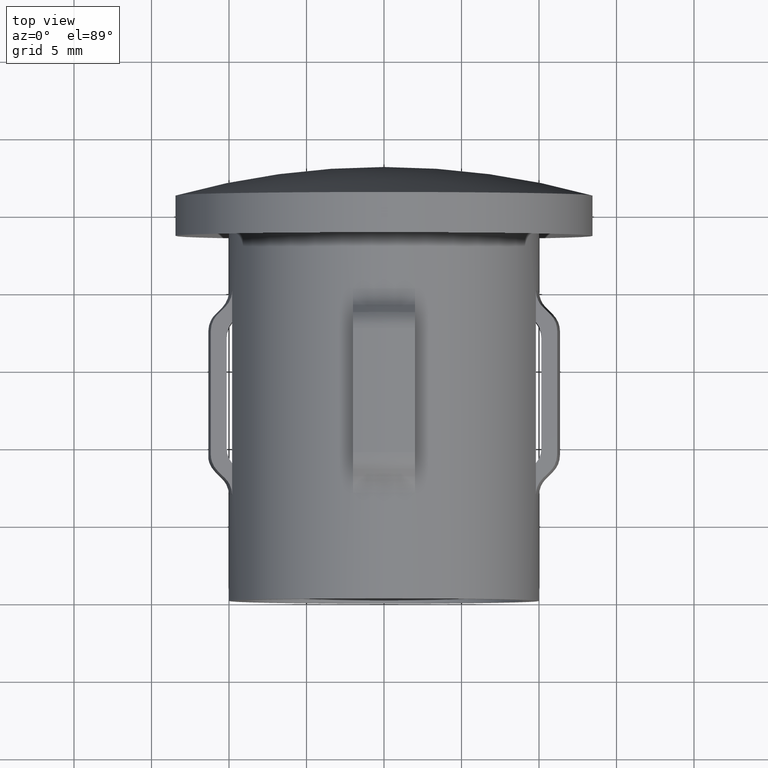
[diagram: clean part render]
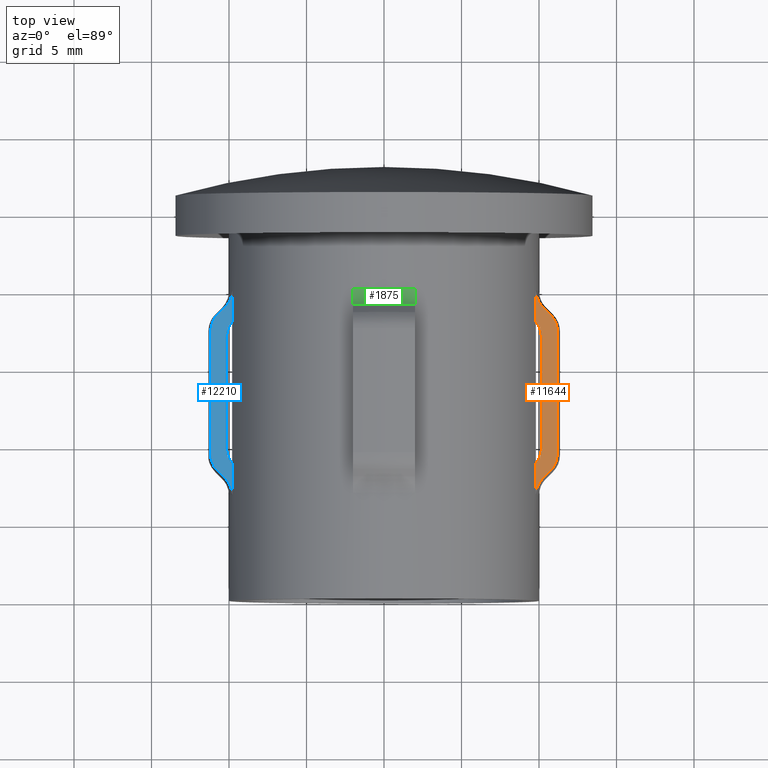
[diagram: same view with three faces highlighted in distinct colors, each labeled with its STEP entity id]
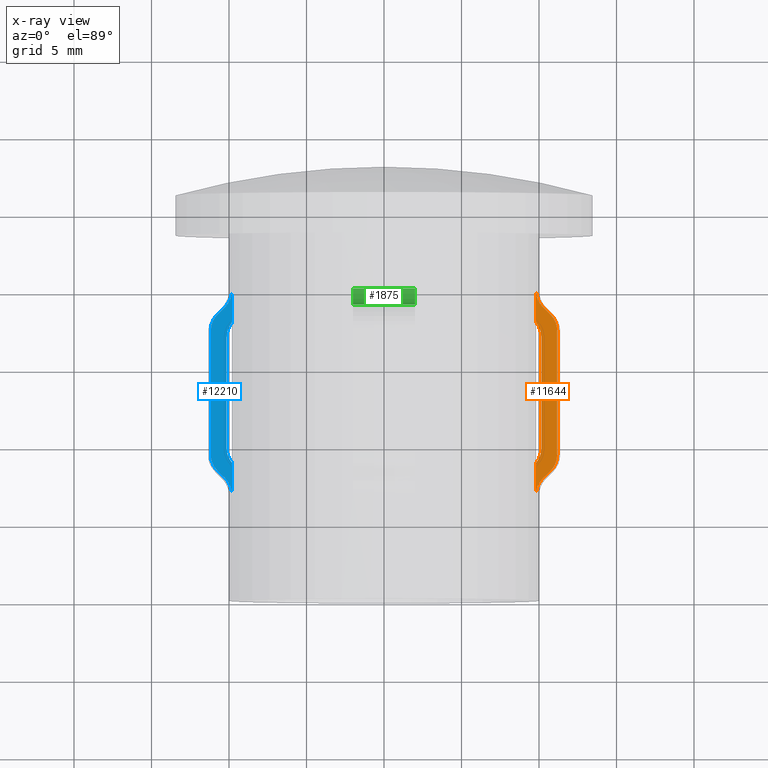
[diagram: x-ray of the same camera — body ghosted, the three highlighted faces saturated]
A machine part, top view with three faces highlighted in distinct colors.
The next image is the same camera in x-ray (body ghosted, the three faces saturated) — at least one of them is partly hidden behind the body in this view.
Their STEP definitions:

[orange] entity #11644 — the highlighted planar face has unit normal (0, -0, 1).
#70 = DIRECTION ( 'NONE',  ( -2.449293598294745364E-17, -1.000000000000000000, -0.000000000000000000 ) ) ;
#178 = B_SPLINE_CURVE_WITH_KNOTS ( 'NONE', 3,
 ( #3140, #12870, #9683, #4201, #8541, #7650, #4294, #4395 ),
 .UNSPECIFIED., .F., .F.,
 ( 4, 2, 2, 4 ),
 ( 0.008426157723448658710, 0.008719793217878499952, 0.009013428712308341195, 0.009600699701168023681 ),
 .UNSPECIFIED. ) ;
#321 = CARTESIAN_POINT ( 'NONE',  ( 11.13256222387941996, 9.014350420652675666, 1.999999999999997113 ) ) ;
#407 = PLANE ( 'NONE',  #3112 ) ;
#541 = VERTEX_POINT ( 'NONE', #11013 ) ;
#682 = ORIENTED_EDGE ( 'NONE', *, *, #5465, .F. ) ;
#790 = VERTEX_POINT ( 'NONE', #4691 ) ;
#822 = CARTESIAN_POINT ( 'NONE',  ( 9.991970481237842705, 19.24281738224883043, 1.999999999999997780 ) ) ;
#912 = ORIENTED_EDGE ( 'NONE', *, *, #6501, .T. ) ;
#1106 = ORIENTED_EDGE ( 'NONE', *, *, #12026, .F. ) ;
#1241 = VERTEX_POINT ( 'NONE', #12310 ) ;
#1580 = CARTESIAN_POINT ( 'NONE',  ( 9.797958971132718631, 17.95621376472045938, 1.999999999999997335 ) ) ;
#1727 = ORIENTED_EDGE ( 'NONE', *, *, #3211, .F. ) ;
#2171 = CARTESIAN_POINT ( 'NONE',  ( 10.72578693542168793, 18.46801948466053744, 1.999999999999997113 ) ) ;
#2434 = ORIENTED_EDGE ( 'NONE', *, *, #12840, .F. ) ;
#2582 = DIRECTION ( 'NONE',  ( 2.904862207577519418E-15, 1.000000000000000000, 0.000000000000000000 ) ) ;
#2615 = ORIENTED_EDGE ( 'NONE', *, *, #4288, .F. ) ;
#2643 = CARTESIAN_POINT ( 'NONE',  ( 10.15492491356471483, 16.99314575050868115, 1.999999999999997335 ) ) ;
#2874 = CARTESIAN_POINT ( 'NONE',  ( 10.72578693542168793, 18.46801948466053744, 1.999999999999997113 ) ) ;
#3112 = AXIS2_PLACEMENT_3D ( 'NONE', #10223, #11320, #12412 ) ;
#3140 = CARTESIAN_POINT ( 'NONE',  ( 10.24596584266530463, 7.875378797541252140, 1.999999999999997335 ) ) ;
#3211 = EDGE_CURVE ( 'NONE', #12797, #3498, #8047, .T. ) ;
#3498 = VERTEX_POINT ( 'NONE', #7045 ) ;
#3569 = B_SPLINE_CURVE_WITH_KNOTS ( 'NONE', 3,
 ( #2171, #10992, #9798, #6675, #11997, #14073 ),
 .UNSPECIFIED., .F., .F.,
 ( 4, 2, 4 ),
 ( 0.008602516756375072973, 0.009189670194162419259, 0.009776823631949767279 ),
 .UNSPECIFIED. ) ;
#3712 = CARTESIAN_POINT ( 'NONE',  ( 10.12308712454889736, 17.34407841311888276, 1.999999999999997780 ) ) ;
#3811 = VERTEX_POINT ( 'NONE', #1580 ) ;
#3872 = DIRECTION ( 'NONE',  ( -2.449293598294745364E-17, -1.000000000000000000, -0.000000000000000000 ) ) ;
#3999 = CARTESIAN_POINT ( 'NONE',  ( 10.24596584266530286, 18.93933982822018791, 1.999999999999997335 ) ) ;
#4201 = CARTESIAN_POINT ( 'NONE',  ( 10.00101974118111237, 7.567751309589711539, 1.999999999999997335 ) ) ;
#4218 = ORIENTED_EDGE ( 'NONE', *, *, #5275, .F. ) ;
#4223 = CARTESIAN_POINT ( 'NONE',  ( 10.27479279310302651, 7.903672865215649601, 1.999999999999997335 ) ) ;
#4275 = VERTEX_POINT ( 'NONE', #11503 ) ;
#4288 = EDGE_CURVE ( 'NONE', #13740, #10254, #9863, .T. ) ;
#4294 = CARTESIAN_POINT ( 'NONE',  ( 9.797958971132720407, 7.010933610141438344, 1.999999999999997780 ) ) ;
#4369 = VECTOR ( 'NONE', #3872, 1000.000000000000000 ) ;
#4395 = CARTESIAN_POINT ( 'NONE',  ( 9.797958971132718631, 6.814718625761425841, 1.999999999999997335 ) ) ;
#4431 = B_SPLINE_CURVE_WITH_KNOTS ( 'NONE', 3,
 ( #2643, #7925, #3712, #12520, #11331, #11427 ),
 .UNSPECIFIED., .F., .F.,
 ( 4, 2, 4 ),
 ( 0.009059009424964729884, 0.009579528376234613257, 0.01010004732750449663 ),
 .UNSPECIFIED. ) ;
#4563 = CARTESIAN_POINT ( 'NONE',  ( 10.86550616014695159, 8.484050924731874943, 1.999999999999997335 ) ) ;
#4691 = CARTESIAN_POINT ( 'NONE',  ( 11.17239902617175140, 9.407359312880741342, 1.999999999999997113 ) ) ;
#4694 = B_SPLINE_CURVE_WITH_KNOTS ( 'NONE', 3,
 ( #10203, #11306, #5146, #11648, #6335, #822, #8485, #7309 ),
 .UNSPECIFIED., .F., .F.,
 ( 4, 2, 2, 4 ),
 ( 0.008551085924792176801, 0.008844617867056085714, 0.009138149809319992892, 0.009725213693847812452 ),
 .UNSPECIFIED. ) ;
#4778 = CARTESIAN_POINT ( 'NONE',  ( 10.24596584266530286, 18.93933982822018791, 1.999999999999997335 ) ) ;
#4854 = EDGE_LOOP ( 'NONE', ( #912, #6021, #1106, #2615, #12685, #4218, #10321, #13792, #2434, #10735, #1727, #682 ) ) ;
#5052 = CARTESIAN_POINT ( 'NONE',  ( 10.12352724954889105, 9.472328512659123234, 1.999999999999997335 ) ) ;
#5127 = CARTESIAN_POINT ( 'NONE',  ( 10.58031067694316185, 8.203687872485012633, 1.999999999999997113 ) ) ;
#5146 = CARTESIAN_POINT ( 'NONE',  ( 9.808040498164391607, 19.80220780296832217, 1.999999999999997335 ) ) ;
#5275 = EDGE_CURVE ( 'NONE', #1241, #4275, #178, .T. ) ;
#5465 = EDGE_CURVE ( 'NONE', #541, #12797, #4694, .T. ) ;
#5643 = EDGE_CURVE ( 'NONE', #11636, #3811, #4431, .T. ) ;
#5993 = EDGE_CURVE ( 'NONE', #3498, #11063, #3569, .T. ) ;
#6021 = ORIENTED_EDGE ( 'NONE', *, *, #5643, .F. ) ;
#6054 = CARTESIAN_POINT ( 'NONE',  ( 9.797958971132718631, 8.858504861040989553, 1.999999999999997335 ) ) ;
#6300 = CARTESIAN_POINT ( 'NONE',  ( 11.17239902617175140, 9.407359312880741342, 1.999999999999997113 ) ) ;
#6335 = CARTESIAN_POINT ( 'NONE',  ( 9.876154369981225756, 19.51651431633856859, 1.999999999999997113 ) ) ;
#6395 = CARTESIAN_POINT ( 'NONE',  ( 11.17239902617160219, 9.211719316799229063, 1.999999999999997113 ) ) ;
#6501 = EDGE_CURVE ( 'NONE', #541, #3811, #7247, .T. ) ;
#6609 = B_SPLINE_CURVE_WITH_KNOTS ( 'NONE', 3,
 ( #10720, #5127, #9607, #12744, #4223, #11818, #11764 ),
 .UNSPECIFIED., .F., .F.,
 ( 4, 3, 4 ),
 ( 0.001809827753613239918, 0.002421824281905946875, 0.002482412859159547139 ),
 .UNSPECIFIED. ) ;
#6675 = CARTESIAN_POINT ( 'NONE',  ( 11.13281070435609443, 17.80045533684128856, 1.999999999999997113 ) ) ;
#6819 = CARTESIAN_POINT ( 'NONE',  ( 10.98030597944945974, 8.652554232323222294, 1.999999999999997113 ) ) ;
#6942 = EDGE_CURVE ( 'NONE', #13740, #4275, #14041, .T. ) ;
#7045 = CARTESIAN_POINT ( 'NONE',  ( 10.72578693542168793, 18.46801948466053744, 1.999999999999997113 ) ) ;
#7247 = LINE ( 'NONE', #12107, #8750 ) ;
#7309 = CARTESIAN_POINT ( 'NONE',  ( 10.24596584266530286, 18.93933982822018791, 1.999999999999997335 ) ) ;
#7447 = CARTESIAN_POINT ( 'NONE',  ( 11.17239902617175140, 20.00000000000000000, 1.999999999999997113 ) ) ;
#7650 = CARTESIAN_POINT ( 'NONE',  ( 9.838866221195736728, 7.210867761781918794, 1.999999999999997780 ) ) ;
#7797 = CARTESIAN_POINT ( 'NONE',  ( 9.797958971132718631, 8.858504861040989553, 1.999999999999997335 ) ) ;
#7829 = CARTESIAN_POINT ( 'NONE',  ( 10.15492491355798421, 25.49999999999996803, 1.999999999999997335 ) ) ;
#7925 = CARTESIAN_POINT ( 'NONE',  ( 10.15492491355777638, 17.16705208759415413, 1.999999999999997335 ) ) ;
#8022 = CARTESIAN_POINT ( 'NONE',  ( 10.26037959174783154, 18.92519307342587354, 1.999999999999997335 ) ) ;
#8047 = B_SPLINE_CURVE_WITH_KNOTS ( 'NONE', 3,
 ( #4778, #8022, #11327, #9207, #11861, #13927, #2874 ),
 .UNSPECIFIED., .F., .F.,
 ( 4, 3, 4 ),
 ( 0.002361237725428175834, 0.002421826253360476883, 0.003033822283465788857 ),
 .UNSPECIFIED. ) ;
#8190 = CARTESIAN_POINT ( 'NONE',  ( 9.911961912947607090, 8.991885427055683166, 1.999999999999997335 ) ) ;
#8485 = CARTESIAN_POINT ( 'NONE',  ( 10.10629499283182042, 19.07642347336998867, 1.999999999999998224 ) ) ;
#8541 = CARTESIAN_POINT ( 'NONE',  ( 9.954065724113762670, 7.481926190087629713, 1.999999999999997780 ) ) ;
#8750 = VECTOR ( 'NONE', #13602, 1000.000000000000000 ) ;
#9207 = CARTESIAN_POINT ( 'NONE',  ( 10.28920545341646964, 18.89689789651923491, 1.999999999999997335 ) ) ;
#9607 = CARTESIAN_POINT ( 'NONE',  ( 10.43478561724956144, 8.060726224694143127, 1.999999999999997335 ) ) ;
#9683 = CARTESIAN_POINT ( 'NONE',  ( 10.11199452816315869, 7.730368194126904235, 1.999999999999997780 ) ) ;
#9798 = CARTESIAN_POINT ( 'NONE',  ( 10.97851938403975502, 18.16572538053133101, 1.999999999999997113 ) ) ;
#9834 = CARTESIAN_POINT ( 'NONE',  ( 11.17239902617175140, 17.40735931288071114, 1.999999999999997113 ) ) ;
#9863 = B_SPLINE_CURVE_WITH_KNOTS ( 'NONE', 3,
 ( #6054, #8190, #10451, #5052, #11451, #11548 ),
 .UNSPECIFIED., .F., .F.,
 ( 4, 2, 4 ),
 ( 0.009399530972505489024, 0.009921360146849611192, 0.01044318932119373336 ),
 .UNSPECIFIED. ) ;
#9927 = VECTOR ( 'NONE', #2582, 1000.000000000000000 ) ;
#10203 = CARTESIAN_POINT ( 'NONE',  ( 9.797958971132718631, 20.00000000000000000, 1.999999999999997335 ) ) ;
#10223 = CARTESIAN_POINT ( 'NONE',  ( 1.340918035724672342E-15, 20.00000000000000000, 2.000000000000001776 ) ) ;
#10254 = VERTEX_POINT ( 'NONE', #12194 ) ;
#10278 = LINE ( 'NONE', #7829, #9927 ) ;
#10321 = ORIENTED_EDGE ( 'NONE', *, *, #13201, .F. ) ;
#10451 = CARTESIAN_POINT ( 'NONE',  ( 10.00168509603316203, 9.144195651052474005, 1.999999999999997780 ) ) ;
#10720 = CARTESIAN_POINT ( 'NONE',  ( 10.72578693542168615, 8.346699141100891950, 1.999999999999997113 ) ) ;
#10735 = ORIENTED_EDGE ( 'NONE', *, *, #5993, .F. ) ;
#10782 = B_SPLINE_CURVE_WITH_KNOTS ( 'NONE', 3,
 ( #6300, #6395, #321, #6819, #4563, #11152 ),
 .UNSPECIFIED., .F., .F.,
 ( 4, 2, 4 ),
 ( 0.008467019257401954893, 0.009053662463943162181, 0.009640305670484367734 ),
 .UNSPECIFIED. ) ;
#10992 = CARTESIAN_POINT ( 'NONE',  ( 10.86655314746043111, 18.32963845415799753, 1.999999999999997113 ) ) ;
#11013 = CARTESIAN_POINT ( 'NONE',  ( 9.797958971132718631, 20.00000000000000000, 1.999999999999997335 ) ) ;
#11063 = VERTEX_POINT ( 'NONE', #9834 ) ;
#11107 = VECTOR ( 'NONE', #70, 1000.000000000000000 ) ;
#11152 = CARTESIAN_POINT ( 'NONE',  ( 10.72578693542168615, 8.346699141100891950, 1.999999999999997113 ) ) ;
#11180 = CARTESIAN_POINT ( 'NONE',  ( 10.15492491356471483, 16.99314575050868115, 1.999999999999997335 ) ) ;
#11306 = CARTESIAN_POINT ( 'NONE',  ( 9.797958971132704420, 19.90172383299794134, 1.999999999999997335 ) ) ;
#11320 = DIRECTION ( 'NONE',  ( 4.255296580328612895E-16, -1.042247067304439156E-32, 1.000000000000000000 ) ) ;
#11327 = CARTESIAN_POINT ( 'NONE',  ( 10.27479279310302296, 18.91104576054578246, 1.999999999999997335 ) ) ;
#11331 = CARTESIAN_POINT ( 'NONE',  ( 9.911361578260844851, 17.82353557514487008, 1.999999999999997780 ) ) ;
#11427 = CARTESIAN_POINT ( 'NONE',  ( 9.797958971132718631, 17.95621376472045938, 1.999999999999997335 ) ) ;
#11451 = CARTESIAN_POINT ( 'NONE',  ( 10.15492491355795757, 9.646231483412558205, 1.999999999999997780 ) ) ;
#11503 = CARTESIAN_POINT ( 'NONE',  ( 9.797958971132718631, 6.814718625761425841, 1.999999999999997335 ) ) ;
#11548 = CARTESIAN_POINT ( 'NONE',  ( 10.15492491355793803, 9.821572875253806956, 1.999999999999997335 ) ) ;
#11636 = VERTEX_POINT ( 'NONE', #11180 ) ;
#11644 = ADVANCED_FACE ( 'NONE', ( #11814 ), #407, .T. ) ;
#11648 = CARTESIAN_POINT ( 'NONE',  ( 9.847185022925405207, 19.61016997431844189, 1.999999999999997780 ) ) ;
#11764 = CARTESIAN_POINT ( 'NONE',  ( 10.24596584266530463, 7.875378797541252140, 1.999999999999997335 ) ) ;
#11814 = FACE_OUTER_BOUND ( 'NONE', #4854, .T. ) ;
#11818 = CARTESIAN_POINT ( 'NONE',  ( 10.26037959174783509, 7.889525552335562075, 1.999999999999997335 ) ) ;
#11861 = CARTESIAN_POINT ( 'NONE',  ( 10.43478561724955966, 18.75399240106728627, 1.999999999999997335 ) ) ;
#11997 = CARTESIAN_POINT ( 'NONE',  ( 11.17239902617159331, 17.60317457647188277, 1.999999999999997335 ) ) ;
#12026 = EDGE_CURVE ( 'NONE', #10254, #11636, #10278, .T. ) ;
#12107 = CARTESIAN_POINT ( 'NONE',  ( 9.797958971132718631, 20.00000000000000000, 1.999999999999997335 ) ) ;
#12180 = CARTESIAN_POINT ( 'NONE',  ( 10.72578693542168615, 8.346699141100891950, 1.999999999999997113 ) ) ;
#12194 = CARTESIAN_POINT ( 'NONE',  ( 10.15492491355793803, 9.821572875253806956, 1.999999999999997335 ) ) ;
#12310 = CARTESIAN_POINT ( 'NONE',  ( 10.24596584266530463, 7.875378797541252140, 1.999999999999997335 ) ) ;
#12412 = DIRECTION ( 'NONE',  ( 1.000000000000000000, 0.000000000000000000, -4.255296580328612895E-16 ) ) ;
#12520 = CARTESIAN_POINT ( 'NONE',  ( 10.00108673456563757, 17.67162711475185333, 1.999999999999997335 ) ) ;
#12685 = ORIENTED_EDGE ( 'NONE', *, *, #6942, .T. ) ;
#12744 = CARTESIAN_POINT ( 'NONE',  ( 10.28920545341647141, 7.917820729242200706, 1.999999999999997335 ) ) ;
#12797 = VERTEX_POINT ( 'NONE', #3999 ) ;
#12840 = EDGE_CURVE ( 'NONE', #11063, #790, #13640, .T. ) ;
#12870 = CARTESIAN_POINT ( 'NONE',  ( 10.17611170401977994, 7.806818607882886951, 1.999999999999997335 ) ) ;
#13201 = EDGE_CURVE ( 'NONE', #13395, #1241, #6609, .T. ) ;
#13395 = VERTEX_POINT ( 'NONE', #12180 ) ;
#13542 = CARTESIAN_POINT ( 'NONE',  ( 9.797958971132718631, 20.00000000000000000, 1.999999999999997335 ) ) ;
#13602 = DIRECTION ( 'NONE',  ( -2.449293598294745364E-17, -1.000000000000000000, -0.000000000000000000 ) ) ;
#13640 = LINE ( 'NONE', #7447, #11107 ) ;
#13645 = EDGE_CURVE ( 'NONE', #790, #13395, #10782, .T. ) ;
#13740 = VERTEX_POINT ( 'NONE', #7797 ) ;
#13792 = ORIENTED_EDGE ( 'NONE', *, *, #13645, .F. ) ;
#13927 = CARTESIAN_POINT ( 'NONE',  ( 10.58031067694316185, 18.61103075327641676, 1.999999999999997113 ) ) ;
#14041 = LINE ( 'NONE', #13542, #4369 ) ;
#14073 = CARTESIAN_POINT ( 'NONE',  ( 11.17239902617175140, 17.40735931288071114, 1.999999999999997113 ) ) ;

[blue] entity #12210 — the highlighted planar face has unit normal (-0, 0, 1).
#55 = EDGE_CURVE ( 'NONE', #9021, #8863, #11698, .T. ) ;
#113 = CARTESIAN_POINT ( 'NONE',  ( -10.70203436084279325, 18.49136893751933997, 1.999999999999997335 ) ) ;
#226 = CARTESIAN_POINT ( 'NONE',  ( -10.85871578851997832, 18.32401813127486179, 1.999999999999997335 ) ) ;
#549 = CARTESIAN_POINT ( 'NONE',  ( -10.39408524818022883, 8.020754500843755963, 1.999999999999997335 ) ) ;
#566 = VERTEX_POINT ( 'NONE', #13251 ) ;
#602 = CARTESIAN_POINT ( 'NONE',  ( -9.911288184425435688, 17.82362144408092419, 1.999999999999997335 ) ) ;
#697 = DIRECTION ( 'NONE',  ( -4.255296580328614374E-16, 1.042247067304439703E-32, 1.000000000000000000 ) ) ;
#708 = VERTEX_POINT ( 'NONE', #6816 ) ;
#804 = CARTESIAN_POINT ( 'NONE',  ( -10.72578693542209649, 18.46801948466110233, 1.999999999999997113 ) ) ;
#935 = VERTEX_POINT ( 'NONE', #941 ) ;
#941 = CARTESIAN_POINT ( 'NONE',  ( -11.17239902617175140, 9.407359312880741342, 1.999999999999997113 ) ) ;
#968 = CARTESIAN_POINT ( 'NONE',  ( -9.847255399679999854, 19.60990471274843472, 1.999999999999997780 ) ) ;
#1044 = EDGE_CURVE ( 'NONE', #2143, #566, #5476, .T. ) ;
#1240 = LINE ( 'NONE', #11105, #7849 ) ;
#1272 = VECTOR ( 'NONE', #12504, 1000.000000000000000 ) ;
#1493 = B_SPLINE_CURVE_WITH_KNOTS ( 'NONE', 3,
 ( #4530, #2848, #8187, #9321, #2803, #1556 ),
 .UNSPECIFIED., .F., .F.,
 ( 4, 2, 4 ),
 ( 0.008908748489845998153, 0.009429974527297893538, 0.009951200564749790659 ),
 .UNSPECIFIED. ) ;
#1556 = CARTESIAN_POINT ( 'NONE',  ( -9.797958971132866068, 8.858504861041035738, 1.999999999999997335 ) ) ;
#1621 = CARTESIAN_POINT ( 'NONE',  ( -9.797958971132816330, 6.913568839548647205, 1.999999999999997780 ) ) ;
#1723 = CARTESIAN_POINT ( 'NONE',  ( -10.71391081099659814, 8.335024249004815644, 1.999999999999997113 ) ) ;
#1776 = CARTESIAN_POINT ( 'NONE',  ( -11.17239902617175140, 17.40735931288071114, 1.999999999999997113 ) ) ;
#1824 = DIRECTION ( 'NONE',  ( 1.000000000000000000, 0.000000000000000000, 4.255296580328614374E-16 ) ) ;
#2058 = CARTESIAN_POINT ( 'NONE',  ( -9.808065996253919394, 19.80200291086222819, 1.999999999999997780 ) ) ;
#2071 = ORIENTED_EDGE ( 'NONE', *, *, #12989, .F. ) ;
#2130 = DIRECTION ( 'NONE',  ( -2.904862207577519418E-15, -1.000000000000000000, -0.000000000000000000 ) ) ;
#2143 = VERTEX_POINT ( 'NONE', #11479 ) ;
#2154 = EDGE_CURVE ( 'NONE', #14058, #6232, #9286, .T. ) ;
#2267 = CARTESIAN_POINT ( 'NONE',  ( -11.17239902617175140, 17.40735931288071114, 1.999999999999997113 ) ) ;
#2602 = ORIENTED_EDGE ( 'NONE', *, *, #55, .F. ) ;
#2605 = CARTESIAN_POINT ( 'NONE',  ( -10.24596584266534194, 18.93933982822024120, 1.999999999999997335 ) ) ;
#2726 = CARTESIAN_POINT ( 'NONE',  ( -10.69015758177718389, 8.311675462107473322, 1.999999999999997335 ) ) ;
#2803 = CARTESIAN_POINT ( 'NONE',  ( -9.911792377277338417, 8.991687074598228691, 1.999999999999997780 ) ) ;
#2848 = CARTESIAN_POINT ( 'NONE',  ( -10.15492491355803217, 9.647652851130255058, 1.999999999999997335 ) ) ;
#2998 = LINE ( 'NONE', #3421, #10305 ) ;
#3079 = CARTESIAN_POINT ( 'NONE',  ( -10.39408524818018442, 18.79396412491777824, 1.999999999999997335 ) ) ;
#3087 = CARTESIAN_POINT ( 'NONE',  ( -10.24596584266540766, 7.875378797541311648, 1.999999999999997335 ) ) ;
#3136 = CARTESIAN_POINT ( 'NONE',  ( -10.24596584266534194, 18.93933982822024120, 1.999999999999997335 ) ) ;
#3378 = DIRECTION ( 'NONE',  ( -2.449293598294745364E-17, -1.000000000000000000, -0.000000000000000000 ) ) ;
#3387 = CARTESIAN_POINT ( 'NONE',  ( -11.13178106805515633, 17.80301514726398437, 1.999999999999997113 ) ) ;
#3421 = CARTESIAN_POINT ( 'NONE',  ( -9.797958971132866068, 20.00000000000000000, 1.999999999999997335 ) ) ;
#3581 = ORIENTED_EDGE ( 'NONE', *, *, #12098, .F. ) ;
#3675 = DIRECTION ( 'NONE',  ( -2.449293598294745364E-17, -1.000000000000000000, -0.000000000000000000 ) ) ;
#3709 = CARTESIAN_POINT ( 'NONE',  ( -10.12300786799566232, 17.34431757740557600, 1.999999999999997335 ) ) ;
#3729 = VECTOR ( 'NONE', #2130, 1000.000000000000000 ) ;
#3819 = CARTESIAN_POINT ( 'NONE',  ( -9.797958971132866068, 17.95621376472045583, 1.999999999999997335 ) ) ;
#3934 = ORIENTED_EDGE ( 'NONE', *, *, #7453, .F. ) ;
#4023 = VERTEX_POINT ( 'NONE', #4575 ) ;
#4107 = CARTESIAN_POINT ( 'NONE',  ( -9.797958971132866068, 17.95621376472045583, 1.999999999999997335 ) ) ;
#4196 = CARTESIAN_POINT ( 'NONE',  ( -10.10473329235346007, 19.07795624555883762, 1.999999999999997335 ) ) ;
#4530 = CARTESIAN_POINT ( 'NONE',  ( -10.15492491355802862, 9.821572875253806956, 1.999999999999997335 ) ) ;
#4575 = CARTESIAN_POINT ( 'NONE',  ( -9.797958971132866068, 20.00000000000000000, 1.999999999999997335 ) ) ;
#4809 = CARTESIAN_POINT ( 'NONE',  ( -9.876481105209471423, 7.299089837474179276, 1.999999999999997780 ) ) ;
#4954 = CARTESIAN_POINT ( 'NONE',  ( -10.10463873481851316, 7.736669574212119649, 1.999999999999997780 ) ) ;
#5027 = CARTESIAN_POINT ( 'NONE',  ( -10.70203436084283766, 8.323349688242190680, 1.999999999999997335 ) ) ;
#5197 = CARTESIAN_POINT ( 'NONE',  ( -10.69015758177718034, 18.50304316365402002, 1.999999999999997335 ) ) ;
#5326 = CARTESIAN_POINT ( 'NONE',  ( -11.17239902617168745, 9.211511224696465661, 1.999999999999997335 ) ) ;
#5476 = LINE ( 'NONE', #13980, #3729 ) ;
#5536 = CARTESIAN_POINT ( 'NONE',  ( -10.24596584266534194, 18.93933982822024120, 1.999999999999997335 ) ) ;
#5673 = ORIENTED_EDGE ( 'NONE', *, *, #1044, .F. ) ;
#5780 = CARTESIAN_POINT ( 'NONE',  ( -11.01739615838316411, 18.07362701906371427, 1.999999999999997113 ) ) ;
#5782 = VERTEX_POINT ( 'NONE', #4107 ) ;
#5912 = CARTESIAN_POINT ( 'NONE',  ( -9.797958971132866068, 6.814718625761425841, 1.999999999999997335 ) ) ;
#5975 = B_SPLINE_CURVE_WITH_KNOTS ( 'NONE', 3,
 ( #10781, #9813, #11968, #10909, #5326, #11871 ),
 .UNSPECIFIED., .F., .F.,
 ( 4, 2, 4 ),
 ( 0.009112881277737024110, 0.009700035206934073256, 0.01028718913613112414 ),
 .UNSPECIFIED. ) ;
#5976 = EDGE_CURVE ( 'NONE', #4023, #5782, #2998, .T. ) ;
#6027 = CARTESIAN_POINT ( 'NONE',  ( -10.54214691619057653, 8.166189049431393343, 1.999999999999997335 ) ) ;
#6084 = ORIENTED_EDGE ( 'NONE', *, *, #8443, .T. ) ;
#6121 = PLANE ( 'NONE',  #6503 ) ;
#6126 = EDGE_CURVE ( 'NONE', #11359, #14058, #7060, .T. ) ;
#6177 = ORIENTED_EDGE ( 'NONE', *, *, #7910, .F. ) ;
#6232 = VERTEX_POINT ( 'NONE', #7176 ) ;
#6390 = CARTESIAN_POINT ( 'NONE',  ( -9.876267447560316270, 19.51614987797373502, 1.999999999999997335 ) ) ;
#6496 = EDGE_CURVE ( 'NONE', #566, #708, #1493, .T. ) ;
#6503 = AXIS2_PLACEMENT_3D ( 'NONE', #13678, #697, #1824 ) ;
#6548 = CARTESIAN_POINT ( 'NONE',  ( -10.72578693542209649, 18.46801948466110233, 1.999999999999997113 ) ) ;
#6686 = CARTESIAN_POINT ( 'NONE',  ( -10.79587992053213164, 18.39911417442961294, 1.999999999999997335 ) ) ;
#6816 = CARTESIAN_POINT ( 'NONE',  ( -9.797958971132866068, 8.858504861041035738, 1.999999999999997335 ) ) ;
#7060 = B_SPLINE_CURVE_WITH_KNOTS ( 'NONE', 3,
 ( #5912, #1621, #11312, #8144, #4809, #12454, #4954, #9091 ),
 .UNSPECIFIED., .F., .F.,
 ( 4, 2, 2, 4 ),
 ( 0.009306239216002366171, 0.009600094048116883730, 0.009893948880231401288, 0.01048165854446043814 ),
 .UNSPECIFIED. ) ;
#7176 = CARTESIAN_POINT ( 'NONE',  ( -10.72578693542178385, 8.346699141100950570, 1.999999999999997113 ) ) ;
#7245 = CARTESIAN_POINT ( 'NONE',  ( -10.15492491355804638, 17.16728518605075848, 1.999999999999997780 ) ) ;
#7453 = EDGE_CURVE ( 'NONE', #8863, #4023, #12521, .T. ) ;
#7849 = VECTOR ( 'NONE', #3675, 1000.000000000000000 ) ;
#7910 = EDGE_CURVE ( 'NONE', #6232, #935, #5975, .T. ) ;
#8144 = CARTESIAN_POINT ( 'NONE',  ( -9.847432176059843556, 7.205497396973618685, 1.999999999999997335 ) ) ;
#8187 = CARTESIAN_POINT ( 'NONE',  ( -10.12360117273968640, 9.472323278449099604, 1.999999999999997780 ) ) ;
#8335 = CARTESIAN_POINT ( 'NONE',  ( -9.797958971132866068, 6.814718625761425841, 1.999999999999997335 ) ) ;
#8443 = EDGE_CURVE ( 'NONE', #12125, #935, #12819, .T. ) ;
#8489 = CARTESIAN_POINT ( 'NONE',  ( -10.54214691619055344, 18.64852957633011954, 1.999999999999997335 ) ) ;
#8573 = B_SPLINE_CURVE_WITH_KNOTS ( 'NONE', 3,
 ( #3819, #602, #9105, #3709, #7245, #9492 ),
 .UNSPECIFIED., .F., .F.,
 ( 4, 2, 4 ),
 ( 0.008593185181745880211, 0.009113823359592956169, 0.009634461537440032128 ),
 .UNSPECIFIED. ) ;
#8863 = VERTEX_POINT ( 'NONE', #2605 ) ;
#8950 = CARTESIAN_POINT ( 'NONE',  ( -11.17239902617175140, 20.00000000000000000, 1.999999999999997113 ) ) ;
#9021 = VERTEX_POINT ( 'NONE', #804 ) ;
#9091 = CARTESIAN_POINT ( 'NONE',  ( -10.24596584266540766, 7.875378797541311648, 1.999999999999997335 ) ) ;
#9105 = CARTESIAN_POINT ( 'NONE',  ( -10.00111147827708713, 17.67153429566273459, 1.999999999999997780 ) ) ;
#9286 = B_SPLINE_CURVE_WITH_KNOTS ( 'NONE', 3,
 ( #9300, #549, #6027, #2726, #5027, #1723, #12602 ),
 .UNSPECIFIED., .F., .F.,
 ( 4, 3, 4 ),
 ( 0.001799201531315413813, 0.002421825388563183645, 0.002471786398512413729 ),
 .UNSPECIFIED. ) ;
#9300 = CARTESIAN_POINT ( 'NONE',  ( -10.24596584266540766, 7.875378797541311648, 1.999999999999997335 ) ) ;
#9321 = CARTESIAN_POINT ( 'NONE',  ( -10.00119284299518618, 9.143074981811878388, 1.999999999999997335 ) ) ;
#9423 = ORIENTED_EDGE ( 'NONE', *, *, #6126, .F. ) ;
#9492 = CARTESIAN_POINT ( 'NONE',  ( -10.15492491355799842, 16.99314575050768283, 1.999999999999997335 ) ) ;
#9562 = FACE_OUTER_BOUND ( 'NONE', #11951, .T. ) ;
#9632 = CARTESIAN_POINT ( 'NONE',  ( -9.797958971132741723, 19.90151168120875269, 1.999999999999997780 ) ) ;
#9813 = CARTESIAN_POINT ( 'NONE',  ( -10.86670254122462786, 8.485227033998437918, 1.999999999999997113 ) ) ;
#10075 = ORIENTED_EDGE ( 'NONE', *, *, #5976, .F. ) ;
#10123 = ORIENTED_EDGE ( 'NONE', *, *, #13279, .F. ) ;
#10305 = VECTOR ( 'NONE', #3378, 1000.000000000000000 ) ;
#10676 = B_SPLINE_CURVE_WITH_KNOTS ( 'NONE', 3,
 ( #2267, #10957, #3387, #5780, #12088, #226, #6686, #12263 ),
 .UNSPECIFIED., .F., .F.,
 ( 4, 2, 2, 4 ),
 ( 0.009188293834329482393, 0.009775615583116127952, 0.01006927645750944726, 0.01036293733190276484 ),
 .UNSPECIFIED. ) ;
#10781 = CARTESIAN_POINT ( 'NONE',  ( -10.72578693542178385, 8.346699141100950570, 1.999999999999997113 ) ) ;
#10909 = CARTESIAN_POINT ( 'NONE',  ( -11.13233644601912609, 9.013774795510082427, 1.999999999999997113 ) ) ;
#10946 = CARTESIAN_POINT ( 'NONE',  ( -10.71391081099651643, 18.47969437675675763, 1.999999999999997113 ) ) ;
#10957 = CARTESIAN_POINT ( 'NONE',  ( -11.17239902617165370, 17.60588764548168683, 1.999999999999996669 ) ) ;
#11105 = CARTESIAN_POINT ( 'NONE',  ( -9.797958971132866068, 20.00000000000000000, 1.999999999999997335 ) ) ;
#11312 = CARTESIAN_POINT ( 'NONE',  ( -9.808108353993176820, 7.013105362145023669, 1.999999999999997780 ) ) ;
#11359 = VERTEX_POINT ( 'NONE', #8335 ) ;
#11479 = CARTESIAN_POINT ( 'NONE',  ( -10.15492491355799842, 16.99314575050768283, 1.999999999999997335 ) ) ;
#11698 = B_SPLINE_CURVE_WITH_KNOTS ( 'NONE', 3,
 ( #6548, #10946, #113, #5197, #8489, #3079, #5536 ),
 .UNSPECIFIED., .F., .F.,
 ( 4, 3, 4 ),
 ( 0.002371862837716416823, 0.002421823878810906022, 0.003044448124199173461 ),
 .UNSPECIFIED. ) ;
#11839 = CARTESIAN_POINT ( 'NONE',  ( -9.797958971132866068, 20.00000000000000000, 1.999999999999997335 ) ) ;
#11871 = CARTESIAN_POINT ( 'NONE',  ( -11.17239902617175140, 9.407359312880741342, 1.999999999999997113 ) ) ;
#11951 = EDGE_LOOP ( 'NONE', ( #2602, #10123, #6084, #6177, #12827, #9423, #2071, #12821, #5673, #3581, #10075, #3934 ) ) ;
#11968 = CARTESIAN_POINT ( 'NONE',  ( -10.98044236807851171, 8.652917470931017263, 1.999999999999997113 ) ) ;
#12088 = CARTESIAN_POINT ( 'NONE',  ( -10.96965098034708852, 18.16125493614907427, 1.999999999999997335 ) ) ;
#12098 = EDGE_CURVE ( 'NONE', #5782, #2143, #8573, .T. ) ;
#12125 = VERTEX_POINT ( 'NONE', #1776 ) ;
#12210 = ADVANCED_FACE ( 'NONE', ( #9562 ), #6121, .T. ) ;
#12263 = CARTESIAN_POINT ( 'NONE',  ( -10.72578693542209649, 18.46801948466110233, 1.999999999999997113 ) ) ;
#12454 = CARTESIAN_POINT ( 'NONE',  ( -9.992096499387992381, 7.571971125717002593, 1.999999999999997335 ) ) ;
#12504 = DIRECTION ( 'NONE',  ( -2.449293598294745364E-17, -1.000000000000000000, -0.000000000000000000 ) ) ;
#12521 = B_SPLINE_CURVE_WITH_KNOTS ( 'NONE', 3,
 ( #3136, #4196, #12867, #6390, #968, #2058, #9632, #11839 ),
 .UNSPECIFIED., .F., .F.,
 ( 4, 2, 2, 4 ),
 ( 0.009379177387257447290, 0.009967112098151906935, 0.01026107945359913676, 0.01055504680904636658 ),
 .UNSPECIFIED. ) ;
#12602 = CARTESIAN_POINT ( 'NONE',  ( -10.72578693542178385, 8.346699141100950570, 1.999999999999997113 ) ) ;
#12819 = LINE ( 'NONE', #8950, #1272 ) ;
#12821 = ORIENTED_EDGE ( 'NONE', *, *, #6496, .F. ) ;
#12827 = ORIENTED_EDGE ( 'NONE', *, *, #2154, .F. ) ;
#12867 = CARTESIAN_POINT ( 'NONE',  ( -9.992409104251921192, 19.24197609090909467, 1.999999999999996669 ) ) ;
#12989 = EDGE_CURVE ( 'NONE', #708, #11359, #1240, .T. ) ;
#13251 = CARTESIAN_POINT ( 'NONE',  ( -10.15492491355802862, 9.821572875253806956, 1.999999999999997335 ) ) ;
#13279 = EDGE_CURVE ( 'NONE', #12125, #9021, #10676, .T. ) ;
#13678 = CARTESIAN_POINT ( 'NONE',  ( -3.612005964067746401E-16, 20.00000000000000000, 2.000000000000001776 ) ) ;
#13980 = CARTESIAN_POINT ( 'NONE',  ( -10.15492491355798421, 25.50000000000002842, 1.999999999999997335 ) ) ;
#14058 = VERTEX_POINT ( 'NONE', #3087 ) ;

[green] entity #1875 — the highlighted toroidal blend (fillet) surface has major radius 11.5 mm and minor (blend) radius 1.5 mm.
#281 = DIRECTION ( 'NONE',  ( 1.000000000000000000, -2.991091686006171128E-15, 0.000000000000000000 ) ) ;
#340 = TOROIDAL_SURFACE ( 'NONE', #7088, 11.50000000000001421, 1.499999999999999556 ) ;
#347 = CARTESIAN_POINT ( 'NONE',  ( -1.999999999999998224, 18.93933982822022344, 10.24596584266532240 ) ) ;
#606 = CARTESIAN_POINT ( 'NONE',  ( 2.000000000000000888, 20.00000000000000000, 9.797958971132775474 ) ) ;
#701 = CARTESIAN_POINT ( 'NONE',  ( 2.000000000000000444, 19.61016997431844899, 9.847185022925424747 ) ) ;
#791 = CARTESIAN_POINT ( 'NONE',  ( 2.000000000000000444, 19.51651431633858280, 9.876154369981239967 ) ) ;
#1653 = EDGE_LOOP ( 'NONE', ( #11470, #3024, #3637, #7818 ) ) ;
#1875 = ADVANCED_FACE ( 'NONE', ( #3224 ), #340, .F. ) ;
#2342 = VERTEX_POINT ( 'NONE', #6588 ) ;
#2442 = CARTESIAN_POINT ( 'NONE',  ( -2.000000000000000444, 20.00000000000003553, 9.797958971132734618 ) ) ;
#3024 = ORIENTED_EDGE ( 'NONE', *, *, #3412, .T. ) ;
#3224 = FACE_OUTER_BOUND ( 'NONE', #1653, .T. ) ;
#3403 = DIRECTION ( 'NONE',  ( -2.904862207577519418E-15, -1.000000000000000000, -0.000000000000000000 ) ) ;
#3412 = EDGE_CURVE ( 'NONE', #2342, #12936, #12244, .T. ) ;
#3637 = ORIENTED_EDGE ( 'NONE', *, *, #12902, .F. ) ;
#3971 = CARTESIAN_POINT ( 'NONE',  ( 2.000000000000001332, 18.93933982822020923, 10.24596584266531707 ) ) ;
#4059 = CARTESIAN_POINT ( 'NONE',  ( 2.000000000000000888, 19.80220780296833283, 9.808040498164405818 ) ) ;
#4721 = CARTESIAN_POINT ( 'NONE',  ( -1.999999999999998224, 19.61016997431847386, 9.847185022925424747 ) ) ;
#5694 = EDGE_CURVE ( 'NONE', #11566, #12527, #11337, .T. ) ;
#6077 = CIRCLE ( 'NONE', #10276, 10.00000000000001776 ) ;
#6588 = CARTESIAN_POINT ( 'NONE',  ( -2.000000000000000444, 20.00000000000003553, 9.797958971132734618 ) ) ;
#6704 = EDGE_CURVE ( 'NONE', #11566, #2342, #6077, .T. ) ;
#6801 = CARTESIAN_POINT ( 'NONE',  ( -1.999999999999999112, 19.51651431633860767, 9.876154369981248848 ) ) ;
#6847 = CARTESIAN_POINT ( 'NONE',  ( -1.999999999999998224, 19.07642347337002064, 10.10629499283183819 ) ) ;
#7088 = AXIS2_PLACEMENT_3D ( 'NONE', #11824, #10868, #10774 ) ;
#7144 = CARTESIAN_POINT ( 'NONE',  ( 2.000000000000001332, 19.07642347337000999, 10.10629499283183108 ) ) ;
#7542 = DIRECTION ( 'NONE',  ( -2.904862207577519418E-15, -1.000000000000000000, -0.000000000000000000 ) ) ;
#7612 = AXIS2_PLACEMENT_3D ( 'NONE', #10000, #3403, #281 ) ;
#7818 = ORIENTED_EDGE ( 'NONE', *, *, #5694, .F. ) ;
#7949 = CARTESIAN_POINT ( 'NONE',  ( 2.000000000000001332, 18.93933982822020923, 10.24596584266531707 ) ) ;
#9060 = CARTESIAN_POINT ( 'NONE',  ( 2.000000000000000888, 20.00000000000000000, 9.797958971132775474 ) ) ;
#10000 = CARTESIAN_POINT ( 'NONE',  ( -1.905781378976214311E-14, 18.93933982822020923, 0.000000000000000000 ) ) ;
#10276 = AXIS2_PLACEMENT_3D ( 'NONE', #11827, #7542, #11875 ) ;
#10563 = CARTESIAN_POINT ( 'NONE',  ( 2.000000000000000888, 19.24281738224885174, 9.991970481237862245 ) ) ;
#10774 = DIRECTION ( 'NONE',  ( 1.000000000000000000, -2.904862207577519418E-15, 0.000000000000000000 ) ) ;
#10868 = DIRECTION ( 'NONE',  ( -2.904862207577519418E-15, -1.000000000000000000, -0.000000000000000000 ) ) ;
#11041 = CARTESIAN_POINT ( 'NONE',  ( -1.999999999999998668, 19.90172383299797687, 9.797958971132723960 ) ) ;
#11337 = B_SPLINE_CURVE_WITH_KNOTS ( 'NONE', 3,
 ( #606, #12562, #4059, #701, #791, #10563, #7144, #3971 ),
 .UNSPECIFIED., .F., .F.,
 ( 4, 2, 2, 4 ),
 ( 0.008551085924792150780, 0.008844617867056052754, 0.009138149809319956463, 0.009725213693847769084 ),
 .UNSPECIFIED. ) ;
#11470 = ORIENTED_EDGE ( 'NONE', *, *, #6704, .T. ) ;
#11566 = VERTEX_POINT ( 'NONE', #9060 ) ;
#11824 = CARTESIAN_POINT ( 'NONE',  ( -1.561251128379126385E-14, 20.00000000000003553, 0.000000000000000000 ) ) ;
#11827 = CARTESIAN_POINT ( 'NONE',  ( -1.597674214167626766E-14, 20.00000000000002842, 0.000000000000000000 ) ) ;
#11875 = DIRECTION ( 'NONE',  ( 1.000000000000000000, -2.775557561562886618E-15, 0.000000000000000000 ) ) ;
#12063 = CARTESIAN_POINT ( 'NONE',  ( -1.999999999999998224, 18.93933982822022344, 10.24596584266532240 ) ) ;
#12214 = CARTESIAN_POINT ( 'NONE',  ( -1.999999999999998668, 19.80220780296836125, 9.808040498164411147 ) ) ;
#12244 = B_SPLINE_CURVE_WITH_KNOTS ( 'NONE', 3,
 ( #2442, #11041, #12214, #4721, #6801, #13332, #6847, #347 ),
 .UNSPECIFIED., .F., .F.,
 ( 4, 2, 2, 4 ),
 ( 0.008551085924792121290, 0.008844617867056030203, 0.009138149809319939115, 0.009725213693847755206 ),
 .UNSPECIFIED. ) ;
#12527 = VERTEX_POINT ( 'NONE', #7949 ) ;
#12562 = CARTESIAN_POINT ( 'NONE',  ( 2.000000000000000888, 19.90172383299794845, 9.797958971132718631 ) ) ;
#12630 = CIRCLE ( 'NONE', #7612, 10.43933982822019857 ) ;
#12902 = EDGE_CURVE ( 'NONE', #12527, #12936, #12630, .T. ) ;
#12936 = VERTEX_POINT ( 'NONE', #12063 ) ;
#13332 = CARTESIAN_POINT ( 'NONE',  ( -1.999999999999998668, 19.24281738224886240, 9.991970481237865798 ) ) ;